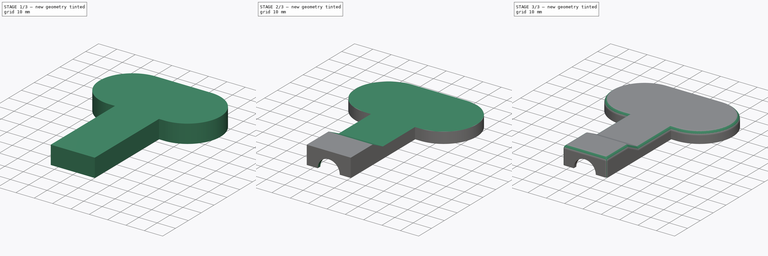
[diagram: build sequence overview — one tinted view per stage of 3, left to right]
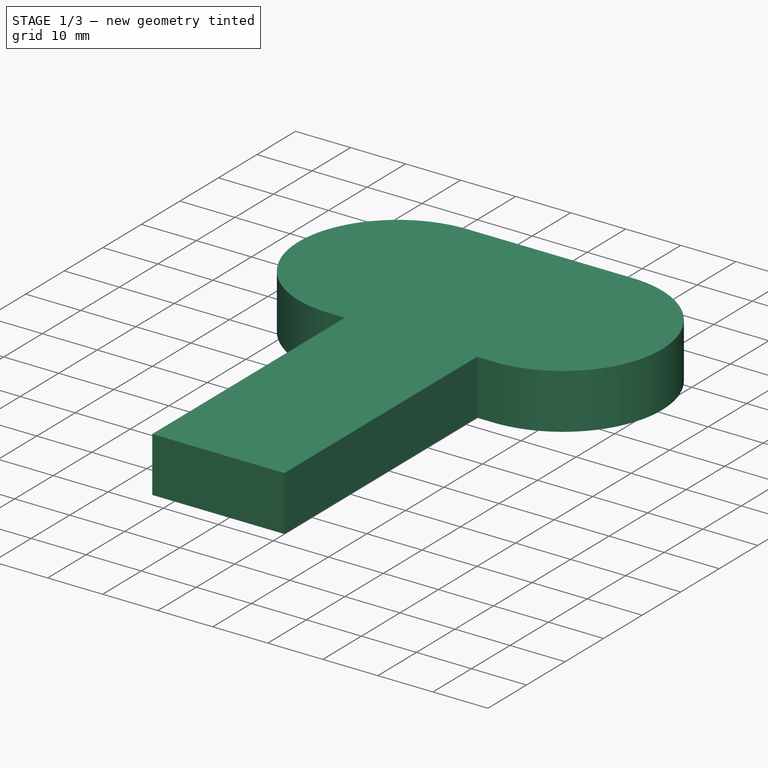
[diagram: stage 1 of 3 — iso view after this stage's code; geometry added in this stage tinted green]
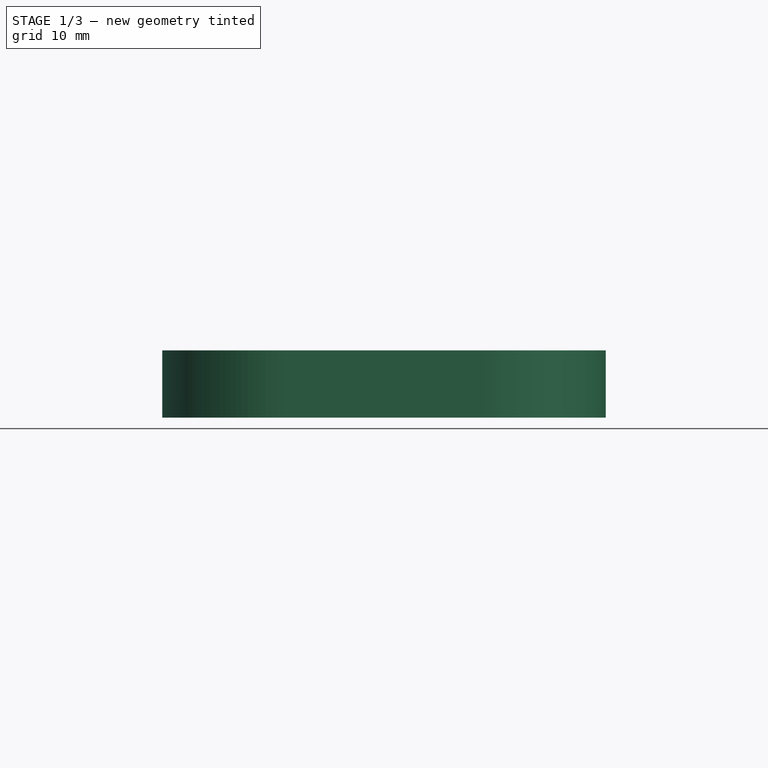
[diagram: stage 1 of 3 — front view after this stage's code; geometry added in this stage tinted green]
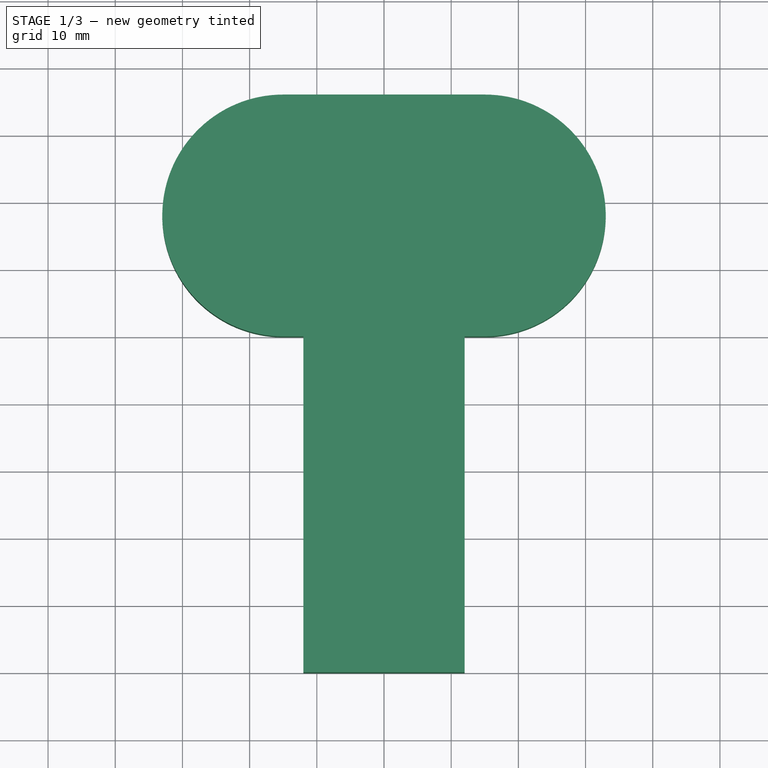
[diagram: stage 1 of 3 — top view after this stage's code; geometry added in this stage tinted green]
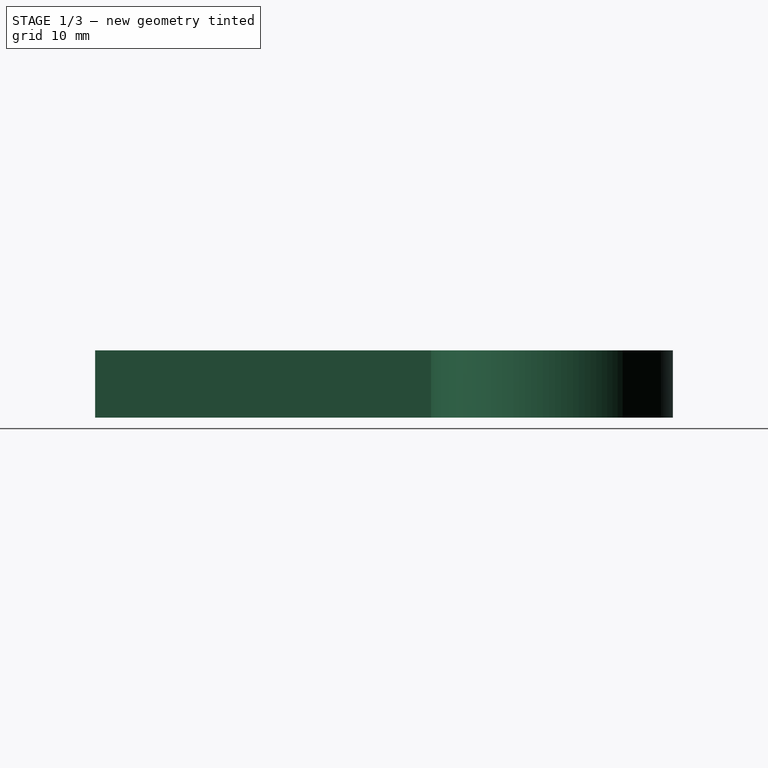
[diagram: stage 1 of 3 — right view after this stage's code; geometry added in this stage tinted green]
FCSTD DOCUMENT  (FreeCAD 0.19R24291 (Git))
Label: double_probe_5cm_top_v2
License: All rights reserved
LicenseURL: http://en.wikipedia.org/wiki/All_rights_reserved
objects: Sketcher::SketchObject×5, PartDesign::Pocket×4, PartDesign::Fillet×2, PartDesign::Pad×1, PartDesign::Body×1, App::Part×1
note: 20 computed .brp shape members not serialized (recipe doc carries the construction recipe); baked Part::Feature solids carry a one-line shape summary decoded from their .brp

FEATURE [Sketcher::SketchObject] Sketch
  FullyConstrained = true
  MapMode = 5
  Support = -> [XY_Plane001]
  sketch-geometry (8):
    g0: LineSegment StartX=12 StartY=10 StartZ=0 EndX=15 EndY=10 EndZ=0
    g1: ArcOfCircle CenterX=15 CenterY=28 CenterZ=0 NormalX=0 NormalY=0 NormalZ=1 AngleXU=0 Radius=18 StartAngle=4.71239 EndAngle=7.85398
    g2: LineSegment StartX=15 StartY=46 StartZ=0 EndX=-15 EndY=46 EndZ=0
    g3: ArcOfCircle CenterX=-15 CenterY=28 CenterZ=0 NormalX=0 NormalY=0 NormalZ=1 AngleXU=0 Radius=18 StartAngle=1.5708 EndAngle=4.71239
    g4: LineSegment StartX=-15 StartY=10 StartZ=0 EndX=-12 EndY=10 EndZ=0
    g5: LineSegment StartX=-12 StartY=10 StartZ=0 EndX=-12 EndY=-40 EndZ=0
    g6: LineSegment StartX=-12 StartY=-40 StartZ=0 EndX=12 EndY=-40 EndZ=0
    g7: LineSegment StartX=12 StartY=-40 StartZ=0 EndX=12 EndY=10 EndZ=0
  constraints (20):
    c: Horizontal(g0)
    c: Tangent(g0,g1) = -1.5708
    c: Horizontal(g2)
    c: Tangent(g2,g3) = -1.5708
    c: Coincident(g4,g5)
    c: Vertical(g5)
    c: Coincident(g5,g6)
    c: Horizontal(g6)
    c: Coincident(g6,g7)
    c: Coincident(g7,g0)
    c: Vertical(g7)
    c: Tangent(g1,g2) = -1.5708
    c: Tangent(g3,g4) = -1.5708
    c: Symmetric(g4,g0,g-2)
    c: Symmetric(g1,g3,g-2)
    c: Radius(g3) = 18
    c: DistanceX(g4,g0) = 24
    c: DistanceY(g5,g4) = 50
    c: DistanceY(g-1,g4) = 10
    c: DistanceX(g0,g0) = 3
FEATURE [PartDesign::Pad] Pad
  Direction = (1,1,1)
  Length = 10
  Length2 = 100
  Profile = -> Sketch
  Refine = true
  Type = 0
FEATURE [Sketcher::SketchObject] Sketch004
  AttachmentOffset = pos=(0,0,40) rot=(0,0,1;0rad)
  FullyConstrained = true
  MapMode = 5
  Placement = pos=(0,-40,-8.9e-15) rot=(1,0,0;1.5708rad)
  Support = -> [XZ_Plane001]
  sketch-geometry (1):
    g0: Circle CenterX=0 CenterY=0 CenterZ=0 NormalX=0 NormalY=0 NormalZ=1 AngleXU=0 Radius=6
  constraints (3):
    c: PointOnObject(g0,g-2)
    c: DistanceY(g-1,g0) = 0
    c: Radius(g0) = 6
FEATURE [Sketcher::SketchObject] Sketch006
  FullyConstrained = true
  MapMode = 5
  Support = -> [XY_Plane001]
  sketch-geometry (8):
    g0: LineSegment StartX=10 StartY=12 StartZ=0 EndX=15 EndY=12 EndZ=0
    g1: ArcOfCircle CenterX=15 CenterY=28 CenterZ=0 NormalX=0 NormalY=0 NormalZ=1 AngleXU=0 Radius=16 StartAngle=4.71239 EndAngle=7.85398
    g2: LineSegment StartX=15 StartY=44 StartZ=0 EndX=-15 EndY=44 EndZ=0
    g3: ArcOfCircle CenterX=-15 CenterY=28 CenterZ=0 NormalX=0 NormalY=0 NormalZ=1 AngleXU=0 Radius=16 StartAngle=1.5708 EndAngle=4.71239
    g4: LineSegment StartX=-15 StartY=12 StartZ=0 EndX=-10 EndY=12 EndZ=0
    g5: LineSegment StartX=-10 StartY=12 StartZ=0 EndX=-10 EndY=-38 EndZ=0
    g6: LineSegment StartX=-10 StartY=-38 StartZ=0 EndX=10 EndY=-38 EndZ=0
    g7: LineSegment StartX=10 StartY=-38 StartZ=0 EndX=10 EndY=12 EndZ=0
  constraints (20):
    c: Horizontal(g0)
    c: Tangent(g0,g1) = -1.5708
    c: Horizontal(g2)
    c: Tangent(g2,g3) = -1.5708
    c: Coincident(g4,g5)
    c: Vertical(g5)
    c: Coincident(g5,g6)
    c: Horizontal(g6)
    c: Coincident(g6,g7)
    c: Coincident(g7,g0)
    c: Vertical(g7)
    c: Tangent(g1,g2) = -1.5708
    c: Tangent(g3,g4) = -1.5708
    c: Symmetric(g4,g0,g-2)
    c: Symmetric(g1,g3,g-2)
    c: Radius(g3) = 16
    c: DistanceX(g4,g0) = 20
    c: DistanceY(g5,g4) = 50
    c: DistanceY(g-1,g4) = 12
    c: DistanceX(g0,g0) = 5
FEATURE [Sketcher::SketchObject] Sketch008
  FullyConstrained = true
  MapMode = 5
  Placement = pos=(0,0,0) rot=(0.57735,0.57735,0.57735;2.0944rad)
  Support = -> [YZ_Plane001]
  sketch-geometry (4):
    g0: LineSegment StartX=-45 StartY=21 StartZ=0 EndX=85 EndY=21 EndZ=0
    g1: LineSegment StartX=85 StartY=21 StartZ=0 EndX=85 EndY=6 EndZ=0
    g2: LineSegment StartX=85 StartY=6 StartZ=0 EndX=-15 EndY=6 EndZ=0
    g3: LineSegment StartX=-15 StartY=6 StartZ=0 EndX=-45 EndY=21 EndZ=0
  constraints (12):
    c: Horizontal(g0)
    c: Coincident(g0,g1)
    c: Vertical(g1)
    c: Coincident(g1,g2)
    c: Horizontal(g2)
    c: Coincident(g2,g3)
    c: Coincident(g3,g0)
    c: DistanceY(g-1,g1) = 6
    c: DistanceY(g1,g0) = 15
    c: DistanceX(g2,g1) = 100
    c: DistanceX(g0,g0) = 130
    c: DistanceX(g2,g-1) = 15
FEATURE [Sketcher::SketchObject] Sketch009
  AttachmentOffset = pos=(0,0,4) rot=(0,0,1;0rad)
  FullyConstrained = true
  MapMode = 5
  Placement = pos=(0,0,4) rot=(0,0,1;0rad)
  Support = -> [XY_Plane001]
  sketch-geometry (4):
    g0: LineSegment StartX=-9 StartY=-38 StartZ=0 EndX=9 EndY=-38 EndZ=0
    g1: LineSegment StartX=9 StartY=-38 StartZ=0 EndX=9 EndY=-23 EndZ=0
    g2: LineSegment StartX=9 StartY=-23 StartZ=0 EndX=-9 EndY=-23 EndZ=0
    g3: LineSegment StartX=-9 StartY=-23 StartZ=0 EndX=-9 EndY=-38 EndZ=0
  constraints (11):
    c: Coincident(g0,g1)
    c: Coincident(g1,g2)
    c: Coincident(g2,g3)
    c: Coincident(g3,g0)
    c: Horizontal(g2)
    c: Vertical(g1)
    c: Vertical(g3)
    c: Symmetric(g0,g0,g-2)
    c: DistanceX(g0,g0) = 18
    c: DistanceY(g0,g1) = 15
    c: DistanceY(g0,g-1) = 38
FEATURE [PartDesign::Pocket] Pocket
  BaseFeature = -> Pad
  Length = 5
  Length2 = 100
  Profile = -> Sketch006
  Refine = true
  Reversed = true
  Type = 0
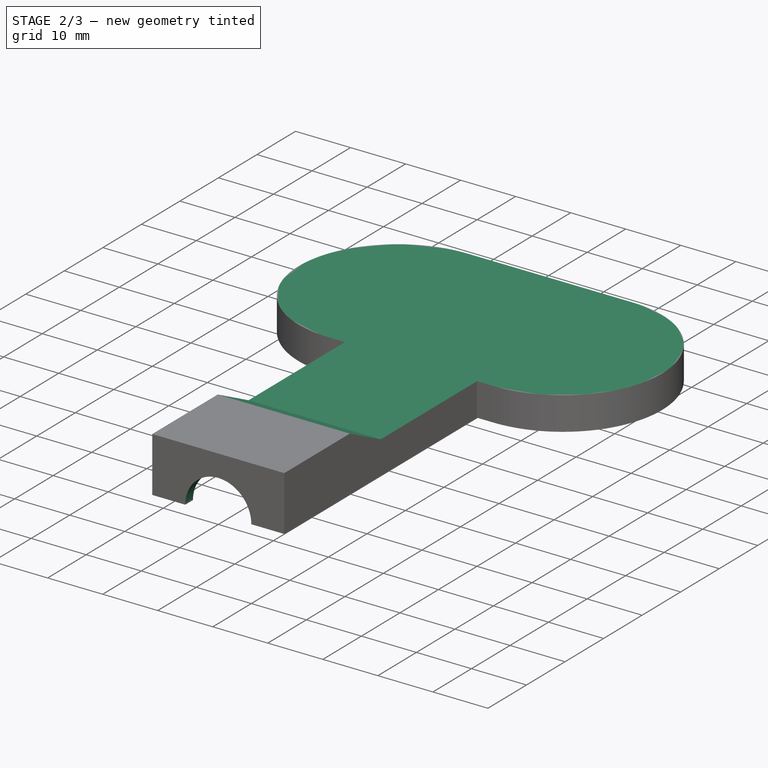
[diagram: stage 2 of 3 — iso view after this stage's code; geometry added in this stage tinted green]
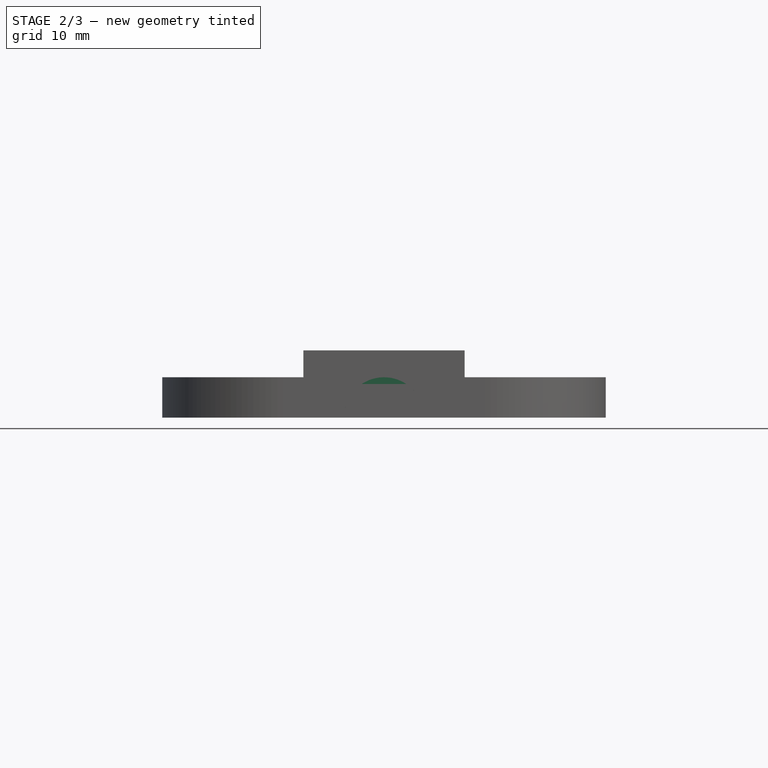
[diagram: stage 2 of 3 — front view after this stage's code; geometry added in this stage tinted green]
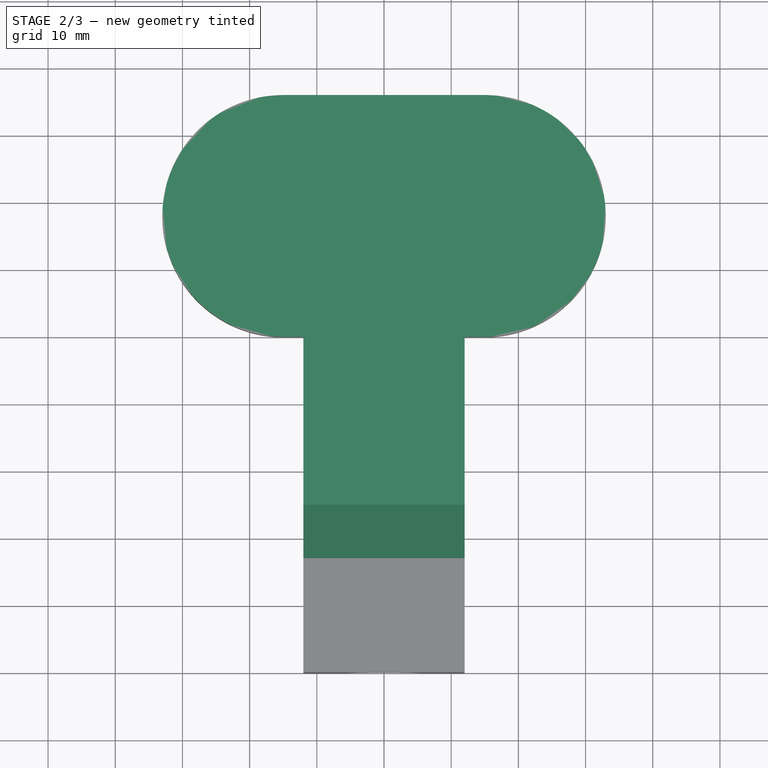
[diagram: stage 2 of 3 — top view after this stage's code; geometry added in this stage tinted green]
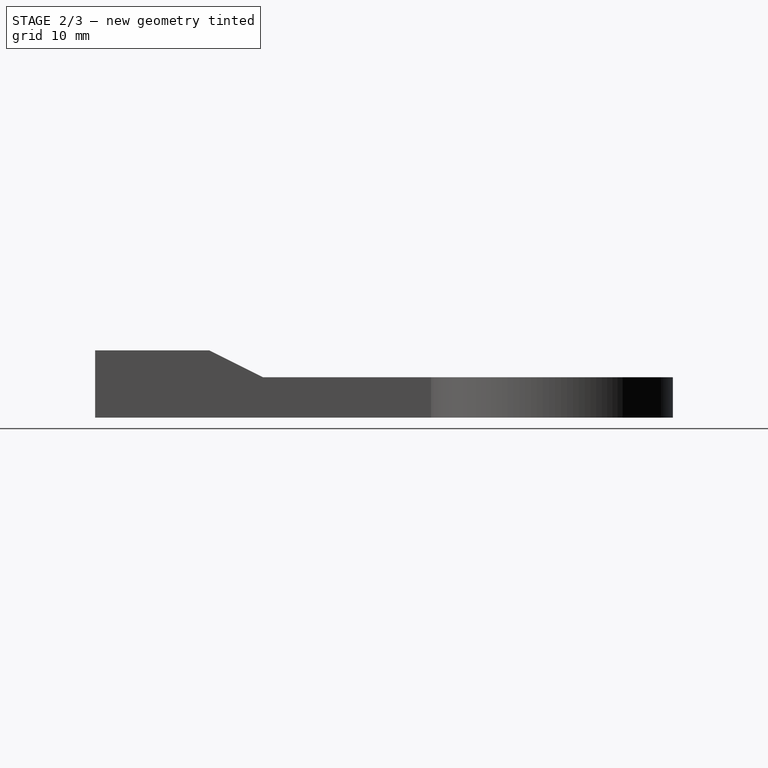
[diagram: stage 2 of 3 — right view after this stage's code; geometry added in this stage tinted green]
FEATURE [PartDesign::Pocket] Pocket002
  BaseFeature = -> Pocket
  Length = 5
  Length2 = 100
  Midplane = true
  Profile = -> Sketch004
  Refine = true
  Reversed = true
  Type = 0
FEATURE [PartDesign::Pocket] Pocket005
  BaseFeature = -> Pocket002
  Length = 80
  Length2 = 100
  Midplane = true
  Profile = -> Sketch008
  Refine = true
  Type = 0
FEATURE [PartDesign::Pocket] Pocket006
  BaseFeature = -> Pocket005
  Length = 4
  Length2 = 100
  Profile = -> Sketch009
  Refine = true
  Reversed = true
  Type = 0
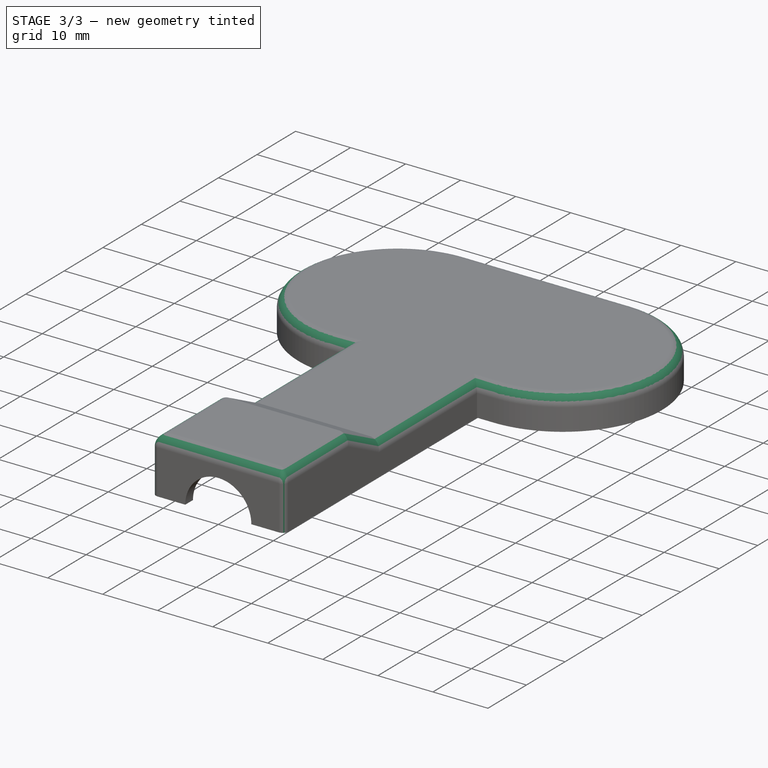
[diagram: stage 3 of 3 — iso view after this stage's code; geometry added in this stage tinted green]
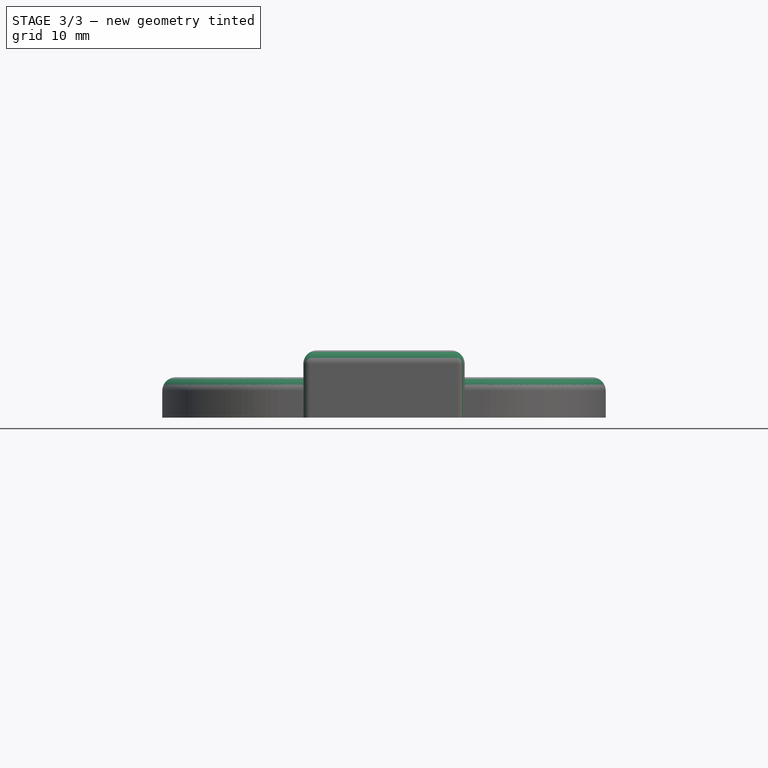
[diagram: stage 3 of 3 — front view after this stage's code; geometry added in this stage tinted green]
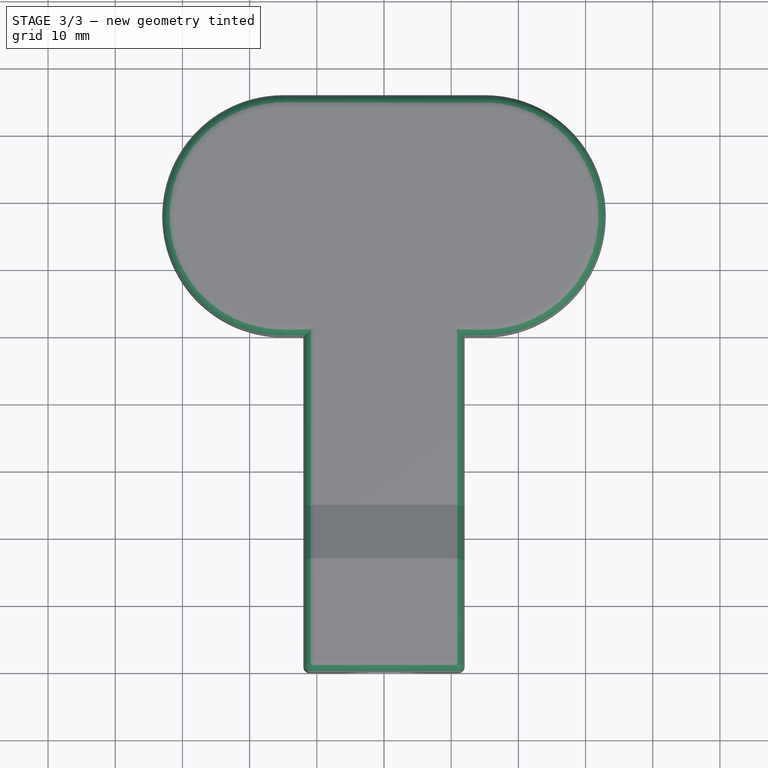
[diagram: stage 3 of 3 — top view after this stage's code; geometry added in this stage tinted green]
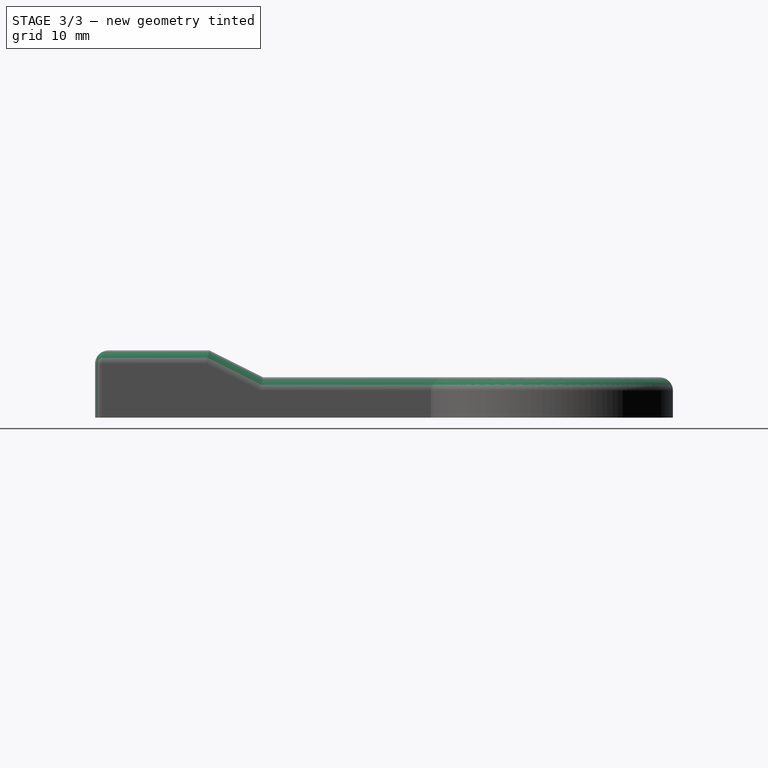
[diagram: stage 3 of 3 — right view after this stage's code; geometry added in this stage tinted green]
FEATURE [PartDesign::Fillet] Fillet
  Base = -> Pocket006 [Edge58,Edge59,Edge27,Edge29,Vertex27,Edge30,Edge25,Edge3,Edge31,Edge32,Edge33,Edge36]
  BaseFeature = -> Pocket006
  Radius = 2
  Refine = true
  SupportTransform = false
FEATURE [PartDesign::Fillet] Fillet001
  Base = -> Fillet [Edge31,Edge45]
  BaseFeature = -> Fillet
  Radius = 1
  Refine = true
  SupportTransform = false
FEATURE [PartDesign::Body] Body  label="Bottom"
  Group = -> [Sketch,Pad,Pocket,Sketch006,Sketch004,Pocket002,Sketch008,Pocket005,Sketch009,Pocket006,Fillet,Fillet001]
  Origin = -> Origin001
  Tip = -> Fillet001
FEATURE [App::Part] Part
  Group = -> [Body]
  Origin = -> Origin
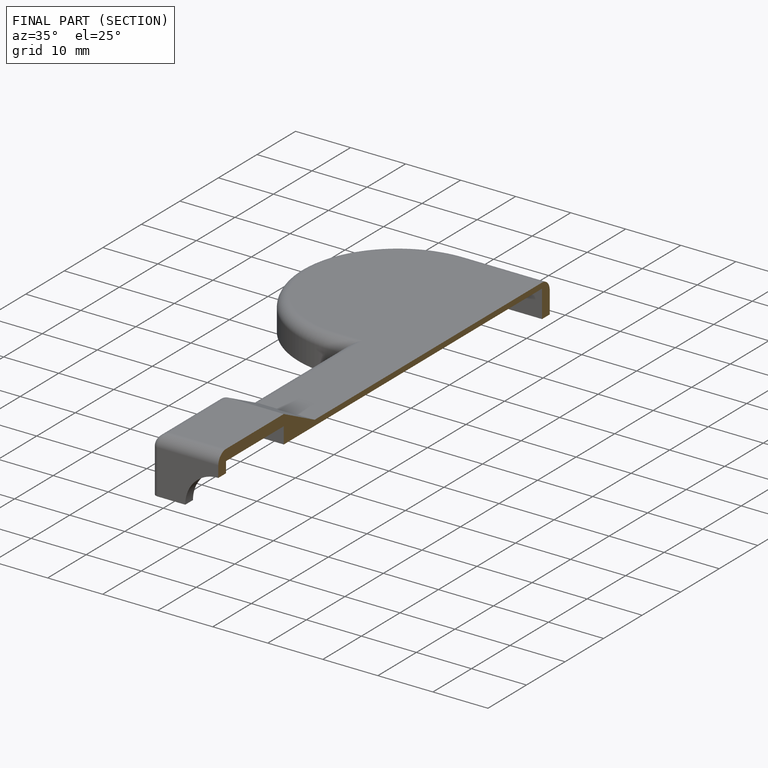
[diagram: finished part — half-section view (interior)]
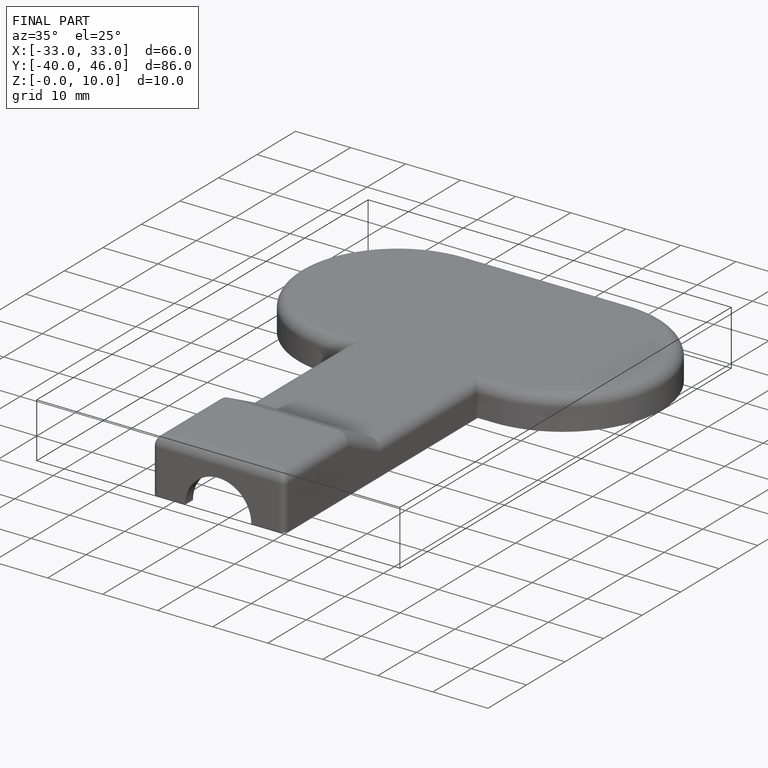
[diagram: finished part — iso view with bounding-box wireframe]
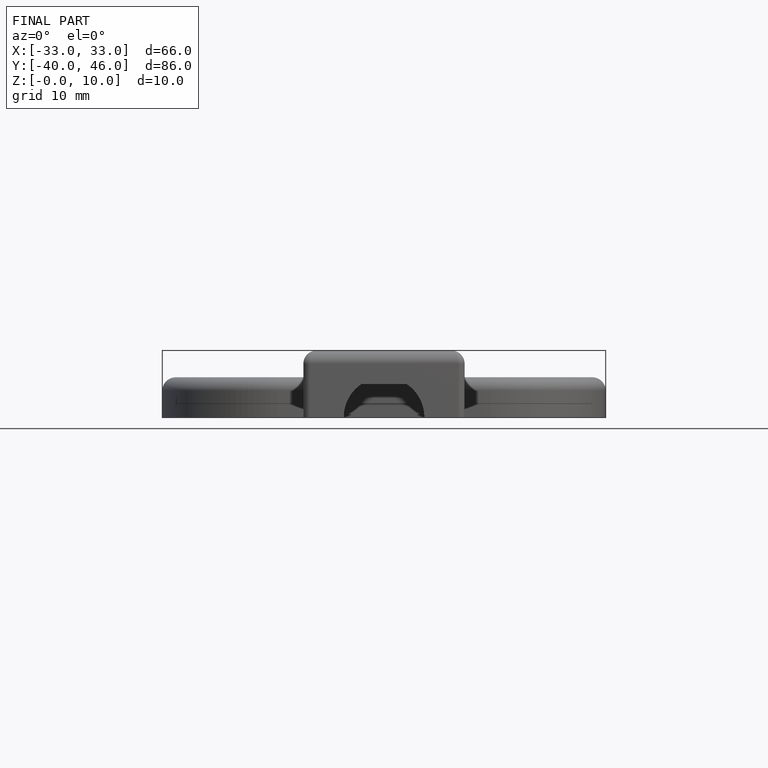
[diagram: finished part — front view with bounding-box wireframe]
